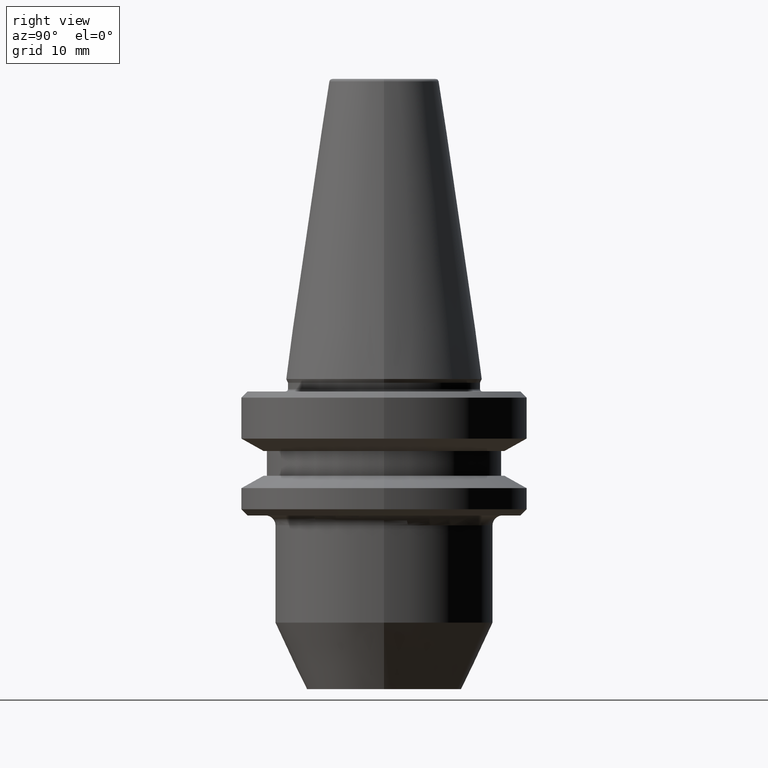
[diagram: clean part render]
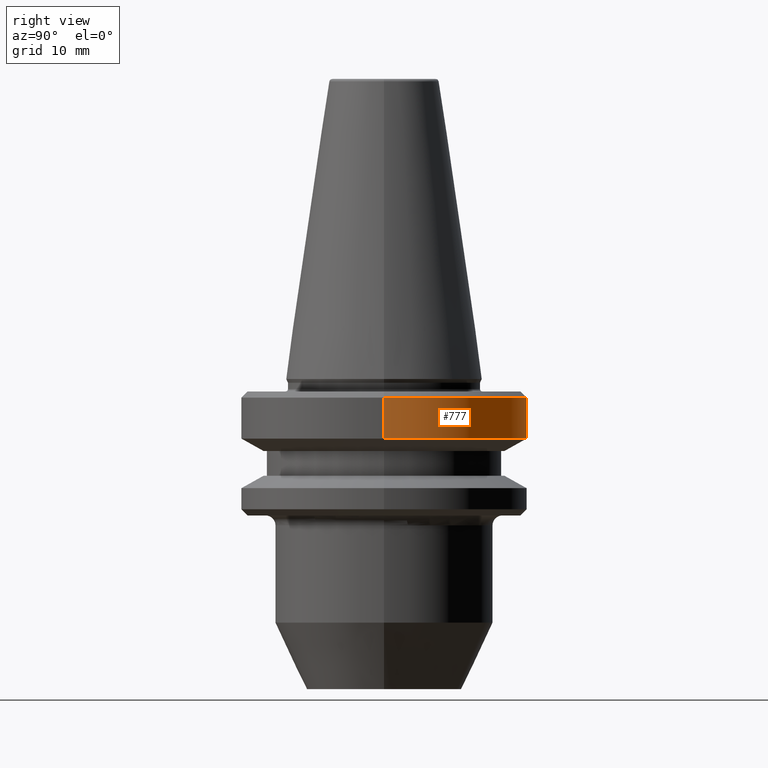
[diagram: same view with one face highlighted and labeled with its STEP entity id]
A machine part, right view. The second image highlights one B-rep face of the part: STEP entity #777.
In plain terms, the highlighted cylindrical surface (partial cylindrical patch) has radius 23 mm, axis along (-0, -0, 1).
Its self-contained STEP definition (entity closure, byte-faithful):
#2 = CARTESIAN_POINT ( 'NONE',  ( 23.00000000000002100, 0.0000000000000000000, 106.7296997704041000 ) ) ;
#37 = CARTESIAN_POINT ( 'NONE',  ( 0.0000000000000000000, 0.0000000000000000000, -2.999999999999891600 ) ) ;
#42 = CARTESIAN_POINT ( 'NONE',  ( 0.0000000000000000000, 0.0000000000000000000, 106.7296997704041000 ) ) ;
#52 = VERTEX_POINT ( 'NONE', #366 ) ;
#78 = DIRECTION ( 'NONE',  ( 1.000000000000000000, 0.0000000000000000000, 0.0000000000000000000 ) ) ;
#82 = EDGE_CURVE ( 'NONE', #52, #608, #321, .T. ) ;
#117 = FACE_OUTER_BOUND ( 'NONE', #543, .T. ) ;
#172 = EDGE_CURVE ( 'NONE', #878, #206, #243, .T. ) ;
#174 = DIRECTION ( 'NONE',  ( -0.0000000000000000000, -0.0000000000000000000, 1.000000000000000000 ) ) ;
#206 = VERTEX_POINT ( 'NONE', #652 ) ;
#243 = LINE ( 'NONE', #611, #642 ) ;
#246 = AXIS2_PLACEMENT_3D ( 'NONE', #42, #174, #461 ) ;
#266 = CYLINDRICAL_SURFACE ( 'NONE', #246, 23.00000000000002100 ) ;
#267 = ORIENTED_EDGE ( 'NONE', *, *, #271, .F. ) ;
#271 = EDGE_CURVE ( 'NONE', #608, #206, #552, .T. ) ;
#308 = DIRECTION ( 'NONE',  ( 1.000000000000000000, 0.0000000000000000000, 0.0000000000000000000 ) ) ;
#321 = LINE ( 'NONE', #2, #698 ) ;
#339 = DIRECTION ( 'NONE',  ( -0.0000000000000000000, -0.0000000000000000000, 1.000000000000000000 ) ) ;
#366 = CARTESIAN_POINT ( 'NONE',  ( 23.00000000000002100, 0.0000000000000000000, -9.600117335054392200 ) ) ;
#435 = CARTESIAN_POINT ( 'NONE',  ( -23.00000000000002100, 2.816687638038914700E-015, -9.600117335054392200 ) ) ;
#461 = DIRECTION ( 'NONE',  ( 1.000000000000000000, 0.0000000000000000000, 0.0000000000000000000 ) ) ;
#484 = CIRCLE ( 'NONE', #939, 23.00000000000002100 ) ;
#485 = ORIENTED_EDGE ( 'NONE', *, *, #172, .T. ) ;
#524 = ORIENTED_EDGE ( 'NONE', *, *, #842, .T. ) ;
#543 = EDGE_LOOP ( 'NONE', ( #524, #485, #267, #634 ) ) ;
#552 = CIRCLE ( 'NONE', #685, 23.00000000000002100 ) ;
#608 = VERTEX_POINT ( 'NONE', #967 ) ;
#611 = CARTESIAN_POINT ( 'NONE',  ( -23.00000000000002100, 2.816687638038915100E-015, 106.7296997704041000 ) ) ;
#634 = ORIENTED_EDGE ( 'NONE', *, *, #82, .F. ) ;
#642 = VECTOR ( 'NONE', #339, 1000.000000000000000 ) ;
#648 = DIRECTION ( 'NONE',  ( -0.0000000000000000000, -0.0000000000000000000, 1.000000000000000000 ) ) ;
#652 = CARTESIAN_POINT ( 'NONE',  ( -23.00000000000002100, 2.816687638038915100E-015, -2.999999999999891600 ) ) ;
#685 = AXIS2_PLACEMENT_3D ( 'NONE', #37, #822, #308 ) ;
#698 = VECTOR ( 'NONE', #648, 1000.000000000000000 ) ;
#715 = DIRECTION ( 'NONE',  ( -0.0000000000000000000, -0.0000000000000000000, 1.000000000000000000 ) ) ;
#777 = ADVANCED_FACE ( 'NONE', ( #117 ), #266, .T. ) ;
#822 = DIRECTION ( 'NONE',  ( -0.0000000000000000000, -0.0000000000000000000, 1.000000000000000000 ) ) ;
#842 = EDGE_CURVE ( 'NONE', #52, #878, #484, .T. ) ;
#853 = CARTESIAN_POINT ( 'NONE',  ( 0.0000000000000000000, 0.0000000000000000000, -9.600117335054392200 ) ) ;
#878 = VERTEX_POINT ( 'NONE', #435 ) ;
#939 = AXIS2_PLACEMENT_3D ( 'NONE', #853, #715, #78 ) ;
#967 = CARTESIAN_POINT ( 'NONE',  ( 23.00000000000002100, 0.0000000000000000000, -2.999999999999891600 ) ) ;